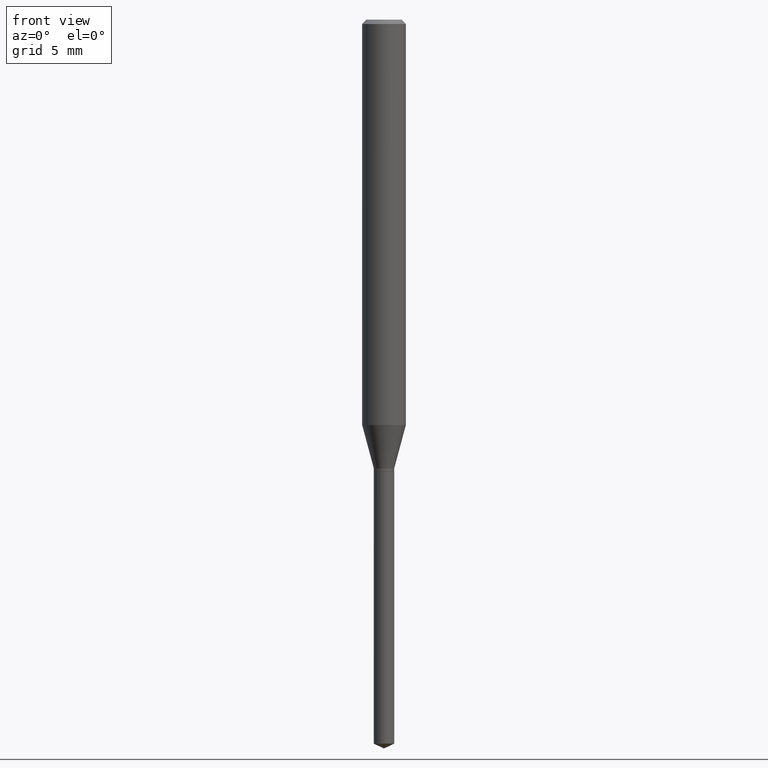
[diagram: clean part render]
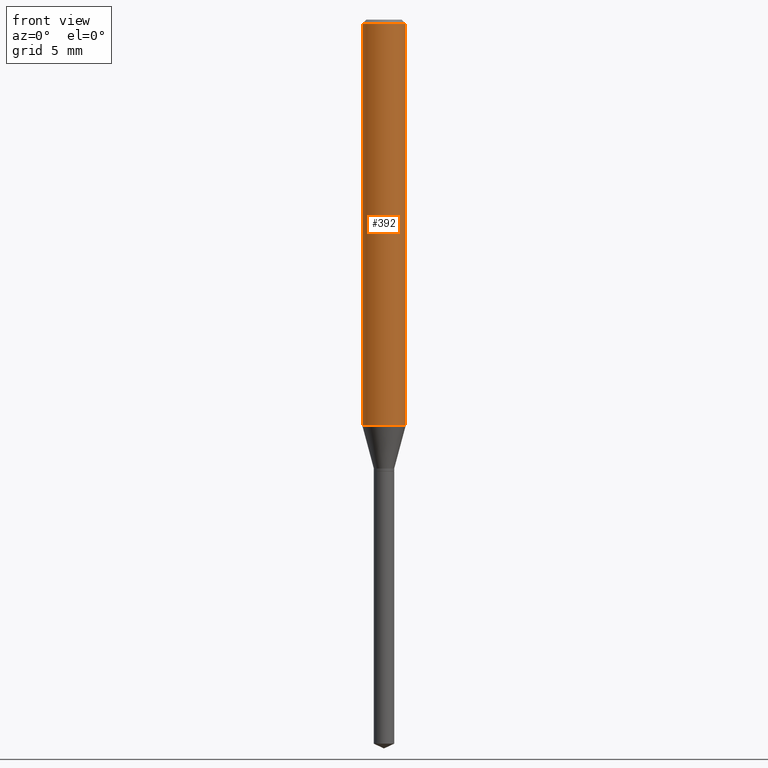
[diagram: same view with one face highlighted and labeled with its STEP entity id]
A machine part, front view. The second image highlights one B-rep face of the part: STEP entity #392.
In plain terms, the highlighted cylindrical surface (edge-blend (fillet) strip) has radius 1.4999 mm, axis along (-0, 0, 1).
Its self-contained STEP definition (entity closure, byte-faithful):
#12 = DIRECTION ( 'NONE',  ( -2.445468806185136877E-29, 3.491481338843145188E-15, 1.000000000000000000 ) ) ;
#14 = CARTESIAN_POINT ( 'NONE',  ( 0.05905000000000006771, -4.123439461173745257E-16, 2.879382386107503723E-30 ) ) ;
#15 = CARTESIAN_POINT ( 'NONE',  ( -0.05905000000000013710, -3.404086783016143258E-15, -1.095140399561580269 ) ) ;
#18 = CIRCLE ( 'NONE', #230, 0.05905000000000013710 ) ;
#42 = VERTEX_POINT ( 'NONE', #15 ) ;
#43 = ORIENTED_EDGE ( 'NONE', *, *, #248, .F. ) ;
#49 = CARTESIAN_POINT ( 'NONE',  ( -0.05905000000000006771, 4.195754854663396409E-16, -2.904631170795525045E-30 ) ) ;
#54 = EDGE_CURVE ( 'NONE', #42, #165, #388, .T. ) ;
#58 = VECTOR ( 'NONE', #12, 39.37007874015748143 ) ;
#74 = ORIENTED_EDGE ( 'NONE', *, *, #54, .F. ) ;
#99 = CIRCLE ( 'NONE', #377, 0.05904999999999999832 ) ;
#107 = AXIS2_PLACEMENT_3D ( 'NONE', #231, #391, #157 ) ;
#114 = FACE_OUTER_BOUND ( 'NONE', #376, .T. ) ;
#118 = CARTESIAN_POINT ( 'NONE',  ( 0.05905000000000013710, -4.236006214599858855E-15, -1.095140399561580269 ) ) ;
#119 = CARTESIAN_POINT ( 'NONE',  ( 2.678131685520970717E-29, -3.823662268482483934E-15, -1.095140399561580269 ) ) ;
#157 = DIRECTION ( 'NONE',  ( 1.000000000000000000, -6.982962677686266711E-15, 4.876176775795936353E-29 ) ) ;
#165 = VERTEX_POINT ( 'NONE', #254 ) ;
#172 = CARTESIAN_POINT ( 'NONE',  ( 0.05904999999999999832, -4.535783407291118600E-16, -0.01181000000000007044 ) ) ;
#203 = VERTEX_POINT ( 'NONE', #118 ) ;
#204 = DIRECTION ( 'NONE',  ( -2.445468806185136597E-29, 3.491481338843145583E-15, 1.000000000000000000 ) ) ;
#214 = DIRECTION ( 'NONE',  ( -2.445468806185136597E-29, 3.491481338843145583E-15, 1.000000000000000000 ) ) ;
#216 = LINE ( 'NONE', #14, #58 ) ;
#228 = ORIENTED_EDGE ( 'NONE', *, *, #383, .T. ) ;
#230 = AXIS2_PLACEMENT_3D ( 'NONE', #119, #204, #281 ) ;
#231 = CARTESIAN_POINT ( 'NONE',  ( 0.000000000000000000, 0.000000000000000000, 0.000000000000000000 ) ) ;
#237 = DIRECTION ( 'NONE',  ( -2.445468806185136877E-29, 3.491481338843145188E-15, 1.000000000000000000 ) ) ;
#248 = EDGE_CURVE ( 'NONE', #165, #344, #99, .T. ) ;
#254 = CARTESIAN_POINT ( 'NONE',  ( -0.05904999999999999832, -1.512872846080770352E-15, -0.01181000000000007044 ) ) ;
#266 = CYLINDRICAL_SURFACE ( 'NONE', #107, 0.05905000000000006771 ) ;
#281 = DIRECTION ( 'NONE',  ( 1.000000000000000000, -6.982962677686264344E-15, 0.000000000000000000 ) ) ;
#324 = DIRECTION ( 'NONE',  ( 1.000000000000000000, -6.982962677686266711E-15, 0.000000000000000000 ) ) ;
#344 = VERTEX_POINT ( 'NONE', #172 ) ;
#357 = VECTOR ( 'NONE', #237, 39.37007874015748143 ) ;
#376 = EDGE_LOOP ( 'NONE', ( #74, #477, #228, #43 ) ) ;
#377 = AXIS2_PLACEMENT_3D ( 'NONE', #407, #214, #324 ) ;
#383 = EDGE_CURVE ( 'NONE', #203, #344, #216, .T. ) ;
#388 = LINE ( 'NONE', #49, #357 ) ;
#391 = DIRECTION ( 'NONE',  ( -2.445468806185136597E-29, 3.491481338843145583E-15, 1.000000000000000000 ) ) ;
#392 = ADVANCED_FACE ( 'NONE', ( #114 ), #266, .T. ) ;
#407 = CARTESIAN_POINT ( 'NONE',  ( 2.888098660104663766E-31, -4.123439461173779647E-17, -0.01181000000000007044 ) ) ;
#419 = EDGE_CURVE ( 'NONE', #42, #203, #18, .T. ) ;
#477 = ORIENTED_EDGE ( 'NONE', *, *, #419, .T. ) ;